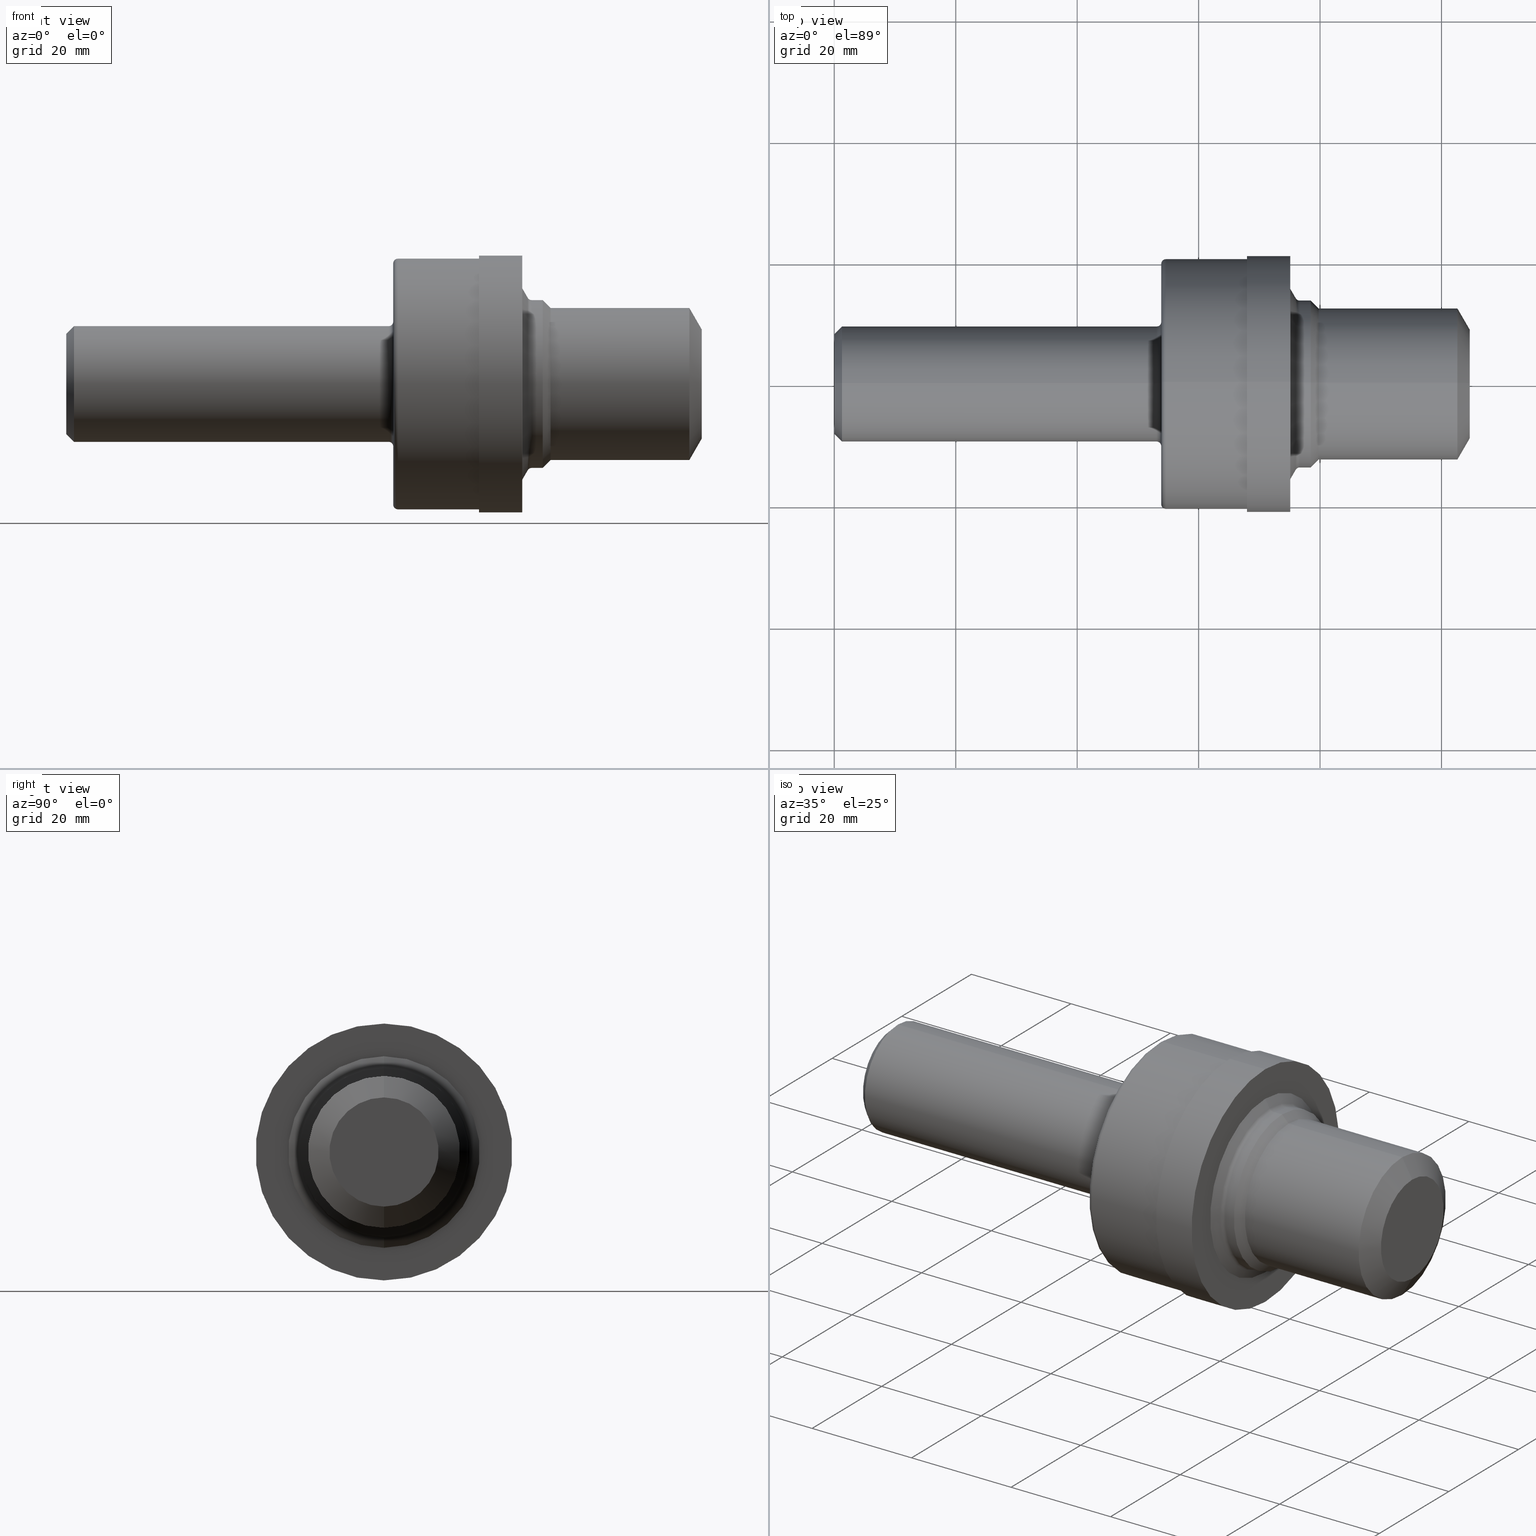
[diagram: canonical four-view strip — front | top / right | iso, engineering-drawing reading convention]
A machine part, canonical four-view strip (front | top / right | iso — engineering-drawing reading convention). The complete STEP part file that produces these views, byte-faithful:
ISO-10303-21;
HEADER;
FILE_DESCRIPTION (( 'STEP AP203' ),
    '1' );
FILE_NAME ('AS5202-12R.STEP',
    '2024-06-19T19:16:16',
    ( '' ),
    ( '' ),
    'SwSTEP 2.0',
    'SolidWorks 2022',
    '' );
FILE_SCHEMA (( 'CONFIG_CONTROL_DESIGN' ));
ENDSEC;

DATA;
#1 = PLANE ( 'NONE',  #441 ) ;
#2 = ORIENTED_EDGE ( 'NONE', *, *, #354, .F. ) ;
#3 = ORIENTED_EDGE ( 'NONE', *, *, #657, .F. ) ;
#4 = EDGE_CURVE ( 'NONE', #307, #818, #255, .T. ) ;
#5 = CIRCLE ( 'NONE', #109, 0.3539359353944886988 ) ;
#6 = LINE ( 'NONE', #716, #703 ) ;
#7 = LINE ( 'NONE', #258, #745 ) ;
#8 = DIRECTION ( 'NONE',  ( 0.000000000000000000, 0.000000000000000000, -1.000000000000000000 ) ) ;
#9 = CARTESIAN_POINT ( 'NONE',  ( 0.05000000000000000278, 0.000000000000000000, 0.000000000000000000 ) ) ;
#10 = DIRECTION ( 'NONE',  ( 1.000000000000000000, 0.000000000000000000, 0.000000000000000000 ) ) ;
#11 = DIRECTION ( 'NONE',  ( -1.000000000000000000, -0.000000000000000000, -0.000000000000000000 ) ) ;
#12 = CARTESIAN_POINT ( 'NONE',  ( 3.140599999999999170, 0.000000000000000000, 0.4924999999999999933 ) ) ;
#13 = DIRECTION ( 'NONE',  ( 0.000000000000000000, 0.000000000000000000, 1.000000000000000000 ) ) ;
#14 = DIRECTION ( 'NONE',  ( 0.000000000000000000, 0.000000000000000000, 1.000000000000000000 ) ) ;
#15 = ADVANCED_FACE ( 'NONE', ( #580 ), #667, .F. ) ;
#16 = DIRECTION ( 'NONE',  ( 0.000000000000000000, 0.000000000000000000, 1.000000000000000000 ) ) ;
#17 = AXIS2_PLACEMENT_3D ( 'NONE', #696, #756, #250 ) ;
#18 = AXIS2_PLACEMENT_3D ( 'NONE', #779, #473, #720 ) ;
#19 = CARTESIAN_POINT ( 'NONE',  ( 2.955999999999999961, 0.000000000000000000, 0.6209999999999999964 ) ) ;
#20 = PERSON_AND_ORGANIZATION ( #478, #463 ) ;
#21 = DIRECTION ( 'NONE',  ( 0.000000000000000000, 0.000000000000000000, 1.000000000000000000 ) ) ;
#22 = FACE_OUTER_BOUND ( 'NONE', #383, .T. ) ;
#23 = CARTESIAN_POINT ( 'NONE',  ( 2.120000000000000107, 4.957982566348060745E-17, -0.4048500000000000432 ) ) ;
#24 = CARTESIAN_POINT ( 'NONE',  ( 3.017141393507181135, 7.018450805913481343E-17, -0.5731000000000000538 ) ) ;
#25 = CYLINDRICAL_SURFACE ( 'NONE', #456, 0.3748500000000000165 ) ;
#26 = FACE_OUTER_BOUND ( 'NONE', #762, .T. ) ;
#27 = LOCAL_TIME ( 12, 16, 16.00000000000000000, #486 ) ;
#28 = CARTESIAN_POINT ( 'NONE',  ( 0.05000000000000000278, 0.000000000000000000, 0.3748500000000000165 ) ) ;
#29 = APPROVAL_DATE_TIME ( #236, #722 ) ;
#30 = FACE_OUTER_BOUND ( 'NONE', #666, .T. ) ;
#31 = CIRCLE ( 'NONE', #364, 0.3248500000000002497 ) ;
#32 = ORIENTED_EDGE ( 'NONE', *, *, #432, .T. ) ;
#33 = AXIS2_PLACEMENT_3D ( 'NONE', #623, #744, #685 ) ;
#34 = DIRECTION ( 'NONE',  ( -1.000000000000000000, -0.000000000000000000, -0.000000000000000000 ) ) ;
#35 = EDGE_CURVE ( 'NONE', #169, #742, #79, .T. ) ;
#36 = ORIENTED_EDGE ( 'NONE', *, *, #107, .F. ) ;
#37 = ORIENTED_EDGE ( 'NONE', *, *, #101, .T. ) ;
#38 = CIRCLE ( 'NONE', #778, 0.3748500000000000165 ) ;
#39 = FACE_OUTER_BOUND ( 'NONE', #821, .T. ) ;
#40 = ORIENTED_EDGE ( 'NONE', *, *, #359, .F. ) ;
#41 = ORIENTED_EDGE ( 'NONE', *, *, #116, .F. ) ;
#42 = ADVANCED_FACE ( 'NONE', ( #536 ), #497, .T. ) ;
#43 = PERSON_AND_ORGANIZATION_ROLE ( 'creator' ) ;
#44 = DIRECTION ( 'NONE',  ( -1.000000000000000000, -0.000000000000000000, -0.000000000000000000 ) ) ;
#45 = EDGE_CURVE ( 'NONE', #503, #673, #7, .T. ) ;
#46 = ORIENTED_EDGE ( 'NONE', *, *, #777, .F. ) ;
#47 = CONICAL_SURFACE ( 'NONE', #150, 0.3539359353944886988, 1.047197551196600074 ) ;
#48 = ORIENTED_EDGE ( 'NONE', *, *, #4, .T. ) ;
#49 = AXIS2_PLACEMENT_3D ( 'NONE', #559, #812, #239 ) ;
#50 = DIRECTION ( 'NONE',  ( -1.000000000000000000, 0.000000000000000000, -0.000000000000000000 ) ) ;
#51 = CONICAL_SURFACE ( 'NONE', #509, 0.4924999999999999933, 0.7853981633974529419 ) ;
#52 = ORIENTED_EDGE ( 'NONE', *, *, #507, .T. ) ;
#53 = CC_DESIGN_PERSON_AND_ORGANIZATION_ASSIGNMENT ( #232, #415, ( #450 ) ) ;
#54 = ADVANCED_FACE ( 'NONE', ( #26 ), #47, .T. ) ;
#55 = ORIENTED_EDGE ( 'NONE', *, *, #116, .T. ) ;
#56 = FACE_OUTER_BOUND ( 'NONE', #500, .T. ) ;
#57 = EDGE_LOOP ( 'NONE', ( #622, #493, #240, #800 ) ) ;
#58 = AXIS2_PLACEMENT_3D ( 'NONE', #447, #502, #246 ) ;
#59 = CYLINDRICAL_SURFACE ( 'NONE', #17, 0.4924999999999999933 ) ;
#60 = ORIENTED_EDGE ( 'NONE', *, *, #100, .F. ) ;
#61 = CIRCLE ( 'NONE', #524, 0.8125000000000000000 ) ;
#62 = CARTESIAN_POINT ( 'NONE',  ( 0.000000000000000000, 4.284426826817016740E-17, 0.3248500000000002497 ) ) ;
#63 = ORIENTED_EDGE ( 'NONE', *, *, #715, .F. ) ;
#64 = CC_DESIGN_PERSON_AND_ORGANIZATION_ASSIGNMENT ( #20, #43, ( #123 ) ) ;
#65 = FACE_OUTER_BOUND ( 'NONE', #99, .T. ) ;
#66 = EDGE_CURVE ( 'NONE', #95, #503, #397, .T. ) ;
#67 = EDGE_LOOP ( 'NONE', ( #287, #172 ) ) ;
#68 = FACE_OUTER_BOUND ( 'NONE', #479, .T. ) ;
#69 = CARTESIAN_POINT ( 'NONE',  ( 2.120000000000000107, 0.000000000000000000, 0.000000000000000000 ) ) ;
#70 = CIRCLE ( 'NONE', #401, 0.02999999999999995379 ) ;
#71 = AXIS2_PLACEMENT_3D ( 'NONE', #545, #225, #612 ) ;
#72 = DIRECTION ( 'NONE',  ( -1.000000000000000000, -0.000000000000000000, -0.000000000000000000 ) ) ;
#73 = DIRECTION ( 'NONE',  ( -1.000000000000000000, -0.000000000000000000, -0.000000000000000000 ) ) ;
#74 = DIRECTION ( 'NONE',  ( -1.000000000000000000, -0.000000000000000000, -0.000000000000000000 ) ) ;
#75 = CARTESIAN_POINT ( 'NONE',  ( 2.676000000000000600, 0.000000000000000000, 0.000000000000000000 ) ) ;
#76 = FACE_OUTER_BOUND ( 'NONE', #420, .T. ) ;
#77 =( NAMED_UNIT ( * ) SI_UNIT ( $, .STERADIAN. ) SOLID_ANGLE_UNIT ( ) );
#78 = LINE ( 'NONE', #648, #152 ) ;
#79 = LINE ( 'NONE', #158, #85 ) ;
#80 = DIRECTION ( 'NONE',  ( -1.000000000000000000, -0.000000000000000000, -0.000000000000000000 ) ) ;
#81 = DIRECTION ( 'NONE',  ( -1.000000000000000000, -0.000000000000000000, -0.000000000000000000 ) ) ;
#82 = FACE_OUTER_BOUND ( 'NONE', #428, .T. ) ;
#83 = DIRECTION ( 'NONE',  ( -1.000000000000000000, -0.000000000000000000, -0.000000000000000000 ) ) ;
#84 = EDGE_CURVE ( 'NONE', #155, #307, #429, .T. ) ;
#85 = VECTOR ( 'NONE', #475, 39.37007874015748143 ) ;
#86 = CIRCLE ( 'NONE', #606, 0.3748500000000000165 ) ;
#87 = CIRCLE ( 'NONE', #190, 0.02899999999999994943 ) ;
#88 = DIRECTION ( 'NONE',  ( -1.000000000000000000, -0.000000000000000000, -0.000000000000000000 ) ) ;
#89 = CARTESIAN_POINT ( 'NONE',  ( 0.000000000000000000, 6.031385485800715365E-17, -0.4924999999999999933 ) ) ;
#90 = PLANE ( 'NONE',  #167 ) ;
#91 = DIRECTION ( 'NONE',  ( 0.000000000000000000, 0.000000000000000000, 1.000000000000000000 ) ) ;
#92 = DIRECTION ( 'NONE',  ( 0.000000000000000000, 0.000000000000000000, 1.000000000000000000 ) ) ;
#93 = CALENDAR_DATE ( 2024, 19, 6 ) ;
#94 = DIRECTION ( 'NONE',  ( 0.000000000000000000, 0.000000000000000000, 1.000000000000000000 ) ) ;
#95 = VERTEX_POINT ( 'NONE', #644 ) ;
#96 = AXIS2_PLACEMENT_3D ( 'NONE', #775, #215, #392 ) ;
#97 = AXIS2_PLACEMENT_3D ( 'NONE', #146, #388, #400 ) ;
#98 = CIRCLE ( 'NONE', #499, 0.5586000000000000965 ) ;
#99 = EDGE_LOOP ( 'NONE', ( #63, #676, #185, #511 ) ) ;
#100 = EDGE_CURVE ( 'NONE', #297, #731, #565, .T. ) ;
#101 = EDGE_CURVE ( 'NONE', #289, #126, #228, .T. ) ;
#102 = CARTESIAN_POINT ( 'NONE',  ( 0.000000000000000000, 0.000000000000000000, 0.000000000000000000 ) ) ;
#103 = ORIENTED_EDGE ( 'NONE', *, *, #597, .F. ) ;
#104 = ORIENTED_EDGE ( 'NONE', *, *, #537, .F. ) ;
#105 = DIRECTION ( 'NONE',  ( 0.000000000000000000, 0.000000000000000000, 1.000000000000000000 ) ) ;
#106 = VERTEX_POINT ( 'NONE', #518 ) ;
#107 = EDGE_CURVE ( 'NONE', #95, #560, #769, .T. ) ;
#108 = AXIS2_PLACEMENT_3D ( 'NONE', #782, #208, #471 ) ;
#109 = AXIS2_PLACEMENT_3D ( 'NONE', #803, #491, #380 ) ;
#110 = ADVANCED_FACE ( 'NONE', ( #709 ), #252, .T. ) ;
#111 = EDGE_LOOP ( 'NONE', ( #554, #736, #806, #697 ) ) ;
#112 = FACE_OUTER_BOUND ( 'NONE', #177, .T. ) ;
#113 = CARTESIAN_POINT ( 'NONE',  ( 2.676000000000000600, 9.950255243072245579E-17, -0.8125000000000000000 ) ) ;
#114 = ORIENTED_EDGE ( 'NONE', *, *, #705, .F. ) ;
#115 = DIRECTION ( 'NONE',  ( -1.000000000000000000, -0.000000000000000000, -0.000000000000000000 ) ) ;
#116 = EDGE_CURVE ( 'NONE', #355, #689, #639, .T. ) ;
#117 = ORIENTED_EDGE ( 'NONE', *, *, #141, .T. ) ;
#118 = LINE ( 'NONE', #313, #521 ) ;
#119 = CIRCLE ( 'NONE', #385, 0.8325000000000000178 ) ;
#120 = CARTESIAN_POINT ( 'NONE',  ( 4.040000000000000036, 0.000000000000000000, 0.000000000000000000 ) ) ;
#121 = VECTOR ( 'NONE', #274, 39.37007874015748143 ) ;
#122 = EDGE_LOOP ( 'NONE', ( #550, #424, #60, #533 ) ) ;
#123 = PRODUCT_DEFINITION ( 'UNKNOWN', '', #645, #608 ) ;
#124 = EDGE_CURVE ( 'NONE', #221, #355, #659, .T. ) ;
#125 = DIRECTION ( 'NONE',  ( 0.000000000000000000, 0.000000000000000000, 1.000000000000000000 ) ) ;
#126 = VERTEX_POINT ( 'NONE', #599 ) ;
#127 = DIRECTION ( 'NONE',  ( -1.000000000000000000, -0.000000000000000000, -0.000000000000000000 ) ) ;
#128 = ORIENTED_EDGE ( 'NONE', *, *, #501, .F. ) ;
#129 = EDGE_CURVE ( 'NONE', #409, #444, #487, .T. ) ;
#130 = FACE_OUTER_BOUND ( 'NONE', #678, .T. ) ;
#131 = DIRECTION ( 'NONE',  ( -1.000000000000000000, -0.000000000000000000, -0.000000000000000000 ) ) ;
#132 = DIRECTION ( 'NONE',  ( 0.000000000000000000, 0.000000000000000000, 1.000000000000000000 ) ) ;
#133 = DIRECTION ( 'NONE',  ( 0.000000000000000000, 0.000000000000000000, 1.000000000000000000 ) ) ;
#134 = AXIS2_PLACEMENT_3D ( 'NONE', #367, #784, #530 ) ;
#135 = AXIS2_PLACEMENT_3D ( 'NONE', #69, #594, #323 ) ;
#136 = AXIS2_PLACEMENT_3D ( 'NONE', #102, #294, #176 ) ;
#137 = CARTESIAN_POINT ( 'NONE',  ( 2.676000000000000600, 1.019518460290171568E-16, -0.8325000000000000178 ) ) ;
#138 = PERSON_AND_ORGANIZATION ( #478, #463 ) ;
#139 = PLANE ( 'NONE',  #254 ) ;
#140 = DIRECTION ( 'NONE',  ( 0.000000000000000000, 0.000000000000000000, 1.000000000000000000 ) ) ;
#141 = EDGE_CURVE ( 'NONE', #673, #560, #589, .T. ) ;
#142 = CARTESIAN_POINT ( 'NONE',  ( 0.000000000000000000, 0.000000000000000000, 0.5441000000000000281 ) ) ;
#143 = EDGE_CURVE ( 'NONE', #620, #349, #308, .T. ) ;
#144 = APPROVAL_DATE_TIME ( #592, #655 ) ;
#145 = DIRECTION ( 'NONE',  ( 0.000000000000000000, 0.000000000000000000, 1.000000000000000000 ) ) ;
#146 = CARTESIAN_POINT ( 'NONE',  ( 2.676000000000000600, 0.000000000000000000, 0.000000000000000000 ) ) ;
#147 = FACE_OUTER_BOUND ( 'NONE', #370, .T. ) ;
#148 = DIRECTION ( 'NONE',  ( -1.000000000000000000, -0.000000000000000000, -0.000000000000000000 ) ) ;
#149 = DIRECTION ( 'NONE',  ( -1.000000000000000000, -0.000000000000000000, -0.000000000000000000 ) ) ;
#150 = AXIS2_PLACEMENT_3D ( 'NONE', #271, #149, #724 ) ;
#151 = AXIS2_PLACEMENT_3D ( 'NONE', #75, #584, #140 ) ;
#152 = VECTOR ( 'NONE', #587, 39.37007874015748143 ) ;
#153 = ADVANCED_FACE ( 'NONE', ( #22 ), #531, .F. ) ;
#154 = DIRECTION ( 'NONE',  ( 0.000000000000000000, 0.000000000000000000, 1.000000000000000000 ) ) ;
#155 = VERTEX_POINT ( 'NONE', #785 ) ;
#156 = CARTESIAN_POINT ( 'NONE',  ( 0.000000000000000000, 0.000000000000000000, 0.000000000000000000 ) ) ;
#157 = DIRECTION ( 'NONE',  ( -1.000000000000000000, -0.000000000000000000, -0.000000000000000000 ) ) ;
#158 = CARTESIAN_POINT ( 'NONE',  ( 0.000000000000000000, 0.000000000000000000, 0.3748500000000000165 ) ) ;
#159 = DATE_AND_TIME ( #298, #275 ) ;
#160 = DIRECTION ( 'NONE',  ( 0.000000000000000000, 0.000000000000000000, 1.000000000000000000 ) ) ;
#161 = ORIENTED_EDGE ( 'NONE', *, *, #45, .F. ) ;
#162 = ORIENTED_EDGE ( 'NONE', *, *, #422, .F. ) ;
#163 = PERSON_AND_ORGANIZATION ( #478, #463 ) ;
#164 = FACE_BOUND ( 'NONE', #352, .T. ) ;
#165 = ORIENTED_EDGE ( 'NONE', *, *, #489, .T. ) ;
#166 = CIRCLE ( 'NONE', #178, 0.03000000000000008910 ) ;
#167 = AXIS2_PLACEMENT_3D ( 'NONE', #706, #698, #327 ) ;
#168 = ORIENTED_EDGE ( 'NONE', *, *, #316, .F. ) ;
#169 = VERTEX_POINT ( 'NONE', #555 ) ;
#170 = LOCAL_TIME ( 12, 16, 16.00000000000000000, #711 ) ;
#171 = EDGE_CURVE ( 'NONE', #748, #355, #200, .T. ) ;
#172 = ORIENTED_EDGE ( 'NONE', *, *, #143, .F. ) ;
#173 = APPROVAL_PERSON_ORGANIZATION ( #163, #305, #611 ) ;
#174 = ADVANCED_FACE ( 'NONE', ( #495 ), #669, .T. ) ;
#175 = DATE_AND_TIME ( #680, #273 ) ;
#176 = DIRECTION ( 'NONE',  ( 0.000000000000000000, 0.000000000000000000, 1.000000000000000000 ) ) ;
#177 = EDGE_LOOP ( 'NONE', ( #312, #405, #796, #182 ) ) ;
#178 = AXIS2_PLACEMENT_3D ( 'NONE', #723, #386, #781 ) ;
#179 = AXIS2_PLACEMENT_3D ( 'NONE', #516, #197, #154 ) ;
#180 = EDGE_LOOP ( 'NONE', ( #686, #48, #363, #628 ) ) ;
#181 = CARTESIAN_POINT ( 'NONE',  ( 4.040000000000000036, 6.031385485800715365E-17, -0.4924999999999999933 ) ) ;
#182 = ORIENTED_EDGE ( 'NONE', *, *, #446, .T. ) ;
#183 = DIRECTION ( 'NONE',  ( 0.000000000000000000, 0.000000000000000000, 1.000000000000000000 ) ) ;
#184 = DIRECTION ( 'NONE',  ( 0.000000000000000000, 0.000000000000000000, 1.000000000000000000 ) ) ;
#185 = ORIENTED_EDGE ( 'NONE', *, *, #572, .T. ) ;
#186 = EDGE_CURVE ( 'NONE', #573, #484, #348, .T. ) ;
#187 = DIRECTION ( 'NONE',  ( 0.7071067811865489050, 0.000000000000000000, -0.7071067811865461294 ) ) ;
#188 = CONICAL_SURFACE ( 'NONE', #498, 0.3539359353944886988, 1.047197551196600074 ) ;
#189 = FACE_OUTER_BOUND ( 'NONE', #492, .T. ) ;
#190 = AXIS2_PLACEMENT_3D ( 'NONE', #331, #211, #268 ) ;
#191 = EDGE_LOOP ( 'NONE', ( #609, #52, #488, #358 ) ) ;
#192 = CARTESIAN_POINT ( 'NONE',  ( 0.000000000000000000, 0.000000000000000000, 0.000000000000000000 ) ) ;
#193 = ORIENTED_EDGE ( 'NONE', *, *, #100, .T. ) ;
#194 = DIRECTION ( 'NONE',  ( 0.000000000000000000, 0.000000000000000000, 1.000000000000000000 ) ) ;
#195 = DIRECTION ( 'NONE',  ( 0.000000000000000000, 0.000000000000000000, 1.000000000000000000 ) ) ;
#196 = DIRECTION ( 'NONE',  ( -0.4999999999999991118, 0.000000000000000000, 0.8660254037844391517 ) ) ;
#197 = DIRECTION ( 'NONE',  ( -1.000000000000000000, -0.000000000000000000, -0.000000000000000000 ) ) ;
#198 = CARTESIAN_POINT ( 'NONE',  ( 2.676000000000000600, 0.000000000000000000, 0.000000000000000000 ) ) ;
#199 = CARTESIAN_POINT ( 'NONE',  ( 2.992026656797432516, 6.840877020037116138E-17, -0.5586000000000000965 ) ) ;
#200 = CIRCLE ( 'NONE', #49, 0.4924999999999999933 ) ;
#201 = CIRCLE ( 'NONE', #241, 0.5441000000000000281 ) ;
#202 = FACE_OUTER_BOUND ( 'NONE', #122, .T. ) ;
#203 = DIRECTION ( 'NONE',  ( 1.000000000000000000, 0.000000000000000000, 0.000000000000000000 ) ) ;
#204 = DIRECTION ( 'NONE',  ( 0.000000000000000000, 0.000000000000000000, -1.000000000000000000 ) ) ;
#205 = CIRCLE ( 'NONE', #290, 0.3748500000000000165 ) ;
#206 = LINE ( 'NONE', #586, #387 ) ;
#207 = CARTESIAN_POINT ( 'NONE',  ( 0.000000000000000000, 0.000000000000000000, 0.000000000000000000 ) ) ;
#208 = DIRECTION ( 'NONE',  ( -1.000000000000000000, 0.000000000000000000, -0.000000000000000000 ) ) ;
#209 = CC_DESIGN_DATE_AND_TIME_ASSIGNMENT ( #175, #540, ( #123 ) ) ;
#210 = ADVANCED_FACE ( 'NONE', ( #56 ), #750, .T. ) ;
#211 = DIRECTION ( 'NONE',  ( 0.000000000000000000, -1.000000000000000000, 0.000000000000000000 ) ) ;
#212 = ORIENTED_EDGE ( 'NONE', *, *, #4, .F. ) ;
#213 = DIRECTION ( 'NONE',  ( -1.000000000000000000, -0.000000000000000000, -0.000000000000000000 ) ) ;
#214 = CARTESIAN_POINT ( 'NONE',  ( 3.140599999999999170, 6.031385485800715365E-17, -0.4924999999999999933 ) ) ;
#215 = DIRECTION ( 'NONE',  ( -1.000000000000000000, -0.000000000000000000, -0.000000000000000000 ) ) ;
#216 = VECTOR ( 'NONE', #567, 39.37007874015748143 ) ;
#217 = AXIS2_PLACEMENT_3D ( 'NONE', #233, #50, #299 ) ;
#218 = CYLINDRICAL_SURFACE ( 'NONE', #310, 0.8325000000000000178 ) ;
#219 = VERTEX_POINT ( 'NONE', #378 ) ;
#220 = DIRECTION ( 'NONE',  ( -1.000000000000000000, -0.000000000000000000, -0.000000000000000000 ) ) ;
#221 = VERTEX_POINT ( 'NONE', #181 ) ;
#222 = EDGE_LOOP ( 'NONE', ( #568, #727, #617, #552 ) ) ;
#223 = ORIENTED_EDGE ( 'NONE', *, *, #777, .T. ) ;
#224 = APPROVAL_STATUS ( 'not_yet_approved' ) ;
#225 = DIRECTION ( 'NONE',  ( -1.000000000000000000, -0.000000000000000000, -0.000000000000000000 ) ) ;
#226 = EDGE_CURVE ( 'NONE', #409, #562, #624, .T. ) ;
#227 = EDGE_LOOP ( 'NONE', ( #751, #614, #417, #448 ) ) ;
#228 = CIRCLE ( 'NONE', #577, 0.3248500000000002497 ) ;
#229 = ADVANCED_FACE ( 'NONE', ( #510 ), #761, .T. ) ;
#230 = TOROIDAL_SURFACE ( 'NONE', #607, 0.7825000000000000844, 0.02999999999999995379 ) ;
#231 = ORIENTED_EDGE ( 'NONE', *, *, #501, .T. ) ;
#232 = PERSON_AND_ORGANIZATION ( #478, #463 ) ;
#233 = CARTESIAN_POINT ( 'NONE',  ( 2.955999999999999961, 0.8325000000000000178, 0.000000000000000000 ) ) ;
#234 = ORIENTED_EDGE ( 'NONE', *, *, #649, .T. ) ;
#235 = ORIENTED_EDGE ( 'NONE', *, *, #171, .T. ) ;
#236 = DATE_AND_TIME ( #93, #27 ) ;
#237 = ORIENTED_EDGE ( 'NONE', *, *, #414, .T. ) ;
#238 = ADVANCED_FACE ( 'NONE', ( #561 ), #1, .F. ) ;
#239 = DIRECTION ( 'NONE',  ( 0.000000000000000000, 0.000000000000000000, 1.000000000000000000 ) ) ;
#240 = ORIENTED_EDGE ( 'NONE', *, *, #35, .T. ) ;
#241 = AXIS2_PLACEMENT_3D ( 'NONE', #737, #44, #303 ) ;
#242 = CIRCLE ( 'NONE', #683, 0.4924999999999999933 ) ;
#243 = CC_DESIGN_DATE_AND_TIME_ASSIGNMENT ( #360, #410, ( #450 ) ) ;
#244 = CARTESIAN_POINT ( 'NONE',  ( 0.000000000000000000, 0.000000000000000000, 0.000000000000000000 ) ) ;
#245 = ORIENTED_EDGE ( 'NONE', *, *, #445, .T. ) ;
#246 = DIRECTION ( 'NONE',  ( 0.000000000000000000, 0.000000000000000000, 1.000000000000000000 ) ) ;
#247 = ORIENTED_EDGE ( 'NONE', *, *, #674, .T. ) ;
#248 = ADVANCED_FACE ( 'NONE', ( #189 ), #59, .T. ) ;
#249 = CARTESIAN_POINT ( 'NONE',  ( 0.000000000000000000, 1.019518460290171568E-16, -0.8325000000000000178 ) ) ;
#250 = DIRECTION ( 'NONE',  ( 0.000000000000000000, 0.000000000000000000, 1.000000000000000000 ) ) ;
#251 = ORIENTED_EDGE ( 'NONE', *, *, #186, .T. ) ;
#252 = CONICAL_SURFACE ( 'NONE', #296, 0.5586000000000000965, 1.047197551196598742 ) ;
#253 = DIRECTION ( 'NONE',  ( 0.000000000000000000, 0.000000000000000000, 1.000000000000000000 ) ) ;
#254 = AXIS2_PLACEMENT_3D ( 'NONE', #391, #10, #333 ) ;
#255 = LINE ( 'NONE', #326, #814 ) ;
#256 = MECHANICAL_CONTEXT ( 'NONE', #652, 'mechanical' ) ;
#257 = CARTESIAN_POINT ( 'NONE',  ( 0.000000000000000000, 0.000000000000000000, 0.000000000000000000 ) ) ;
#258 = CARTESIAN_POINT ( 'NONE',  ( 2.992026656797432516, 0.000000000000000000, 0.5586000000000000965 ) ) ;
#259 = CYLINDRICAL_SURFACE ( 'NONE', #179, 0.8325000000000000178 ) ;
#260 = APPLICATION_PROTOCOL_DEFINITION ( 'international standard', 'config_control_design', 1994, #652 ) ;
#261 = CARTESIAN_POINT ( 'NONE',  ( 2.089999999999999858, 0.000000000000000000, 0.000000000000000000 ) ) ;
#262 = DIRECTION ( 'NONE',  ( 0.000000000000000000, 0.000000000000000000, 1.000000000000000000 ) ) ;
#263 = EDGE_CURVE ( 'NONE', #735, #368, #438, .T. ) ;
#264 = LENGTH_MEASURE_WITH_UNIT ( LENGTH_MEASURE( 0.02539999999999999897 ), #398 );
#265 = CARTESIAN_POINT ( 'NONE',  ( 4.120000000000000107, 0.000000000000000000, 0.3539359353944886988 ) ) ;
#266 = DIRECTION ( 'NONE',  ( -0.7071067811865442421, 8.659560562354973534E-17, -0.7071067811865507924 ) ) ;
#267 = AXIS2_PLACEMENT_3D ( 'NONE', #306, #694, #253 ) ;
#268 = DIRECTION ( 'NONE',  ( 0.000000000000000000, 0.000000000000000000, -1.000000000000000000 ) ) ;
#269 = CC_DESIGN_PERSON_AND_ORGANIZATION_ASSIGNMENT ( #773, #457, ( #687 ) ) ;
#270 = CARTESIAN_POINT ( 'NONE',  ( 2.120000000000000107, 0.000000000000000000, 0.4048500000000000432 ) ) ;
#271 = CARTESIAN_POINT ( 'NONE',  ( 4.120000000000000107, 0.000000000000000000, 0.000000000000000000 ) ) ;
#272 = ADVANCED_FACE ( 'NONE', ( #820 ), #788, .T. ) ;
#273 = LOCAL_TIME ( 12, 16, 16.00000000000000000, #618 ) ;
#274 = DIRECTION ( 'NONE',  ( -0.7071067811865442421, 0.000000000000000000, 0.7071067811865507924 ) ) ;
#275 = LOCAL_TIME ( 12, 16, 16.00000000000000000, #425 ) ;
#276 =( CONVERSION_BASED_UNIT ( 'INCH', #264 ) LENGTH_UNIT ( ) NAMED_UNIT ( #663 ) );
#277 = DIRECTION ( 'NONE',  ( 0.000000000000000000, 0.000000000000000000, 1.000000000000000000 ) ) ;
#278 = DIRECTION ( 'NONE',  ( -1.000000000000000000, -0.000000000000000000, -0.000000000000000000 ) ) ;
#279 = PRODUCT_RELATED_PRODUCT_CATEGORY ( 'detail', '', ( #687 ) ) ;
#280 = DIRECTION ( 'NONE',  ( 0.000000000000000000, 0.000000000000000000, 1.000000000000000000 ) ) ;
#281 = DIRECTION ( 'NONE',  ( 0.000000000000000000, 0.000000000000000000, 1.000000000000000000 ) ) ;
#282 = EDGE_CURVE ( 'NONE', #221, #562, #430, .T. ) ;
#283 = ORIENTED_EDGE ( 'NONE', *, *, #776, .F. ) ;
#284 = AXIS2_PLACEMENT_3D ( 'NONE', #505, #638, #125 ) ;
#285 = AXIS2_PLACEMENT_3D ( 'NONE', #461, #467, #280 ) ;
#286 = EDGE_CURVE ( 'NONE', #219, #484, #70, .T. ) ;
#287 = ORIENTED_EDGE ( 'NONE', *, *, #446, .F. ) ;
#288 = PERSON_AND_ORGANIZATION ( #478, #463 ) ;
#289 = VERTEX_POINT ( 'NONE', #62 ) ;
#290 = AXIS2_PLACEMENT_3D ( 'NONE', #522, #213, #780 ) ;
#291 = PERSON_AND_ORGANIZATION ( #478, #463 ) ;
#292 = EDGE_LOOP ( 'NONE', ( #235, #55, #319, #3 ) ) ;
#293 = ORIENTED_EDGE ( 'NONE', *, *, #316, .T. ) ;
#294 = DIRECTION ( 'NONE',  ( -1.000000000000000000, -0.000000000000000000, -0.000000000000000000 ) ) ;
#295 = ORIENTED_EDGE ( 'NONE', *, *, #124, .F. ) ;
#296 = AXIS2_PLACEMENT_3D ( 'NONE', #330, #588, #16 ) ;
#297 = VERTEX_POINT ( 'NONE', #314 ) ;
#298 = CALENDAR_DATE ( 2024, 19, 6 ) ;
#299 = DIRECTION ( 'NONE',  ( -0.000000000000000000, 0.000000000000000000, 1.000000000000000000 ) ) ;
#300 = ADVANCED_FACE ( 'NONE', ( #452 ), #542, .F. ) ;
#301 = ORIENTED_EDGE ( 'NONE', *, *, #507, .F. ) ;
#302 = ADVANCED_FACE ( 'NONE', ( #65 ), #317, .T. ) ;
#303 = DIRECTION ( 'NONE',  ( 0.000000000000000000, 0.000000000000000000, 1.000000000000000000 ) ) ;
#304 = ORIENTED_EDGE ( 'NONE', *, *, #171, .F. ) ;
#305 = APPROVAL ( #802, 'UNSPECIFIED' ) ;
#306 = CARTESIAN_POINT ( 'NONE',  ( 2.120000000000000107, 0.000000000000000000, 0.000000000000000000 ) ) ;
#307 = VERTEX_POINT ( 'NONE', #113 ) ;
#308 = CIRCLE ( 'NONE', #135, 0.4048500000000000432 ) ;
#309 = CIRCLE ( 'NONE', #770, 0.5441000000000000281 ) ;
#310 = AXIS2_PLACEMENT_3D ( 'NONE', #789, #538, #601 ) ;
#311 = CARTESIAN_POINT ( 'NONE',  ( 0.000000000000000000, 4.590588526603853748E-17, -0.3748500000000000165 ) ) ;
#312 = ORIENTED_EDGE ( 'NONE', *, *, #344, .F. ) ;
#313 = CARTESIAN_POINT ( 'NONE',  ( 0.000000000000000000, 0.000000000000000000, 0.8125000000000000000 ) ) ;
#314 = CARTESIAN_POINT ( 'NONE',  ( 2.676000000000000600, 0.000000000000000000, 0.8325000000000000178 ) ) ;
#315 = EDGE_LOOP ( 'NONE', ( #46, #490, #247, #245 ) ) ;
#316 = EDGE_CURVE ( 'NONE', #793, #809, #519, .T. ) ;
#317 = CYLINDRICAL_SURFACE ( 'NONE', #719, 0.5441000000000000281 ) ;
#318 = EDGE_CURVE ( 'NONE', #126, #289, #31, .T. ) ;
#319 = ORIENTED_EDGE ( 'NONE', *, *, #362, .F. ) ;
#320 = AXIS2_PLACEMENT_3D ( 'NONE', #746, #752, #816 ) ;
#321 = DIRECTION ( 'NONE',  ( 0.000000000000000000, 0.000000000000000000, -1.000000000000000000 ) ) ;
#322 = AXIS2_PLACEMENT_3D ( 'NONE', #593, #523, #470 ) ;
#323 = DIRECTION ( 'NONE',  ( 0.000000000000000000, 0.000000000000000000, 1.000000000000000000 ) ) ;
#324 = CARTESIAN_POINT ( 'NONE',  ( 2.089999999999999858, 0.000000000000000000, 0.4048500000000000432 ) ) ;
#325 = DIRECTION ( 'NONE',  ( -1.000000000000000000, -0.000000000000000000, -0.000000000000000000 ) ) ;
#326 = CARTESIAN_POINT ( 'NONE',  ( 0.000000000000000000, 9.950255243072245579E-17, -0.8125000000000000000 ) ) ;
#327 = DIRECTION ( 'NONE',  ( 0.000000000000000000, 0.000000000000000000, -1.000000000000000000 ) ) ;
#328 = DIRECTION ( 'NONE',  ( -1.000000000000000000, -0.000000000000000000, -0.000000000000000000 ) ) ;
#329 = FACE_BOUND ( 'NONE', #485, .T. ) ;
#330 = CARTESIAN_POINT ( 'NONE',  ( 2.992026656797432516, 0.000000000000000000, 0.000000000000000000 ) ) ;
#331 = CARTESIAN_POINT ( 'NONE',  ( 3.017141393507181135, 0.000000000000000000, 0.5731000000000000538 ) ) ;
#332 = ADVANCED_FACE ( 'NONE', ( #30 ), #792, .T. ) ;
#333 = DIRECTION ( 'NONE',  ( 0.000000000000000000, 0.000000000000000000, -1.000000000000000000 ) ) ;
#334 = DIRECTION ( 'NONE',  ( 0.000000000000000000, 0.000000000000000000, 1.000000000000000000 ) ) ;
#335 = AXIS2_PLACEMENT_3D ( 'NONE', #774, #643, #14 ) ;
#336 = TOROIDAL_SURFACE ( 'NONE', #477, 0.4048500000000000432, 0.03000000000000012379 ) ;
#337 = CARTESIAN_POINT ( 'NONE',  ( 3.088999999999999968, 0.000000000000000000, 0.000000000000000000 ) ) ;
#338 = CARTESIAN_POINT ( 'NONE',  ( 2.149999999999999911, 0.000000000000000000, 0.000000000000000000 ) ) ;
#339 = CARTESIAN_POINT ( 'NONE',  ( 0.05000000000000000278, 4.590588526603853748E-17, -0.3748500000000000165 ) ) ;
#340 = CARTESIAN_POINT ( 'NONE',  ( 0.000000000000000000, 0.000000000000000000, 0.000000000000000000 ) ) ;
#341 = CARTESIAN_POINT ( 'NONE',  ( 3.140599999999999170, 0.000000000000000000, 0.000000000000000000 ) ) ;
#342 = ORIENTED_EDGE ( 'NONE', *, *, #570, .F. ) ;
#343 = CARTESIAN_POINT ( 'NONE',  ( 3.017141393507181135, 0.000000000000000000, 0.5441000000000000281 ) ) ;
#344 = EDGE_CURVE ( 'NONE', #735, #620, #166, .T. ) ;
#345 = CC_DESIGN_APPROVAL ( #305, ( #645 ) ) ;
#346 = PERSON_AND_ORGANIZATION_ROLE ( 'creator' ) ;
#347 = CARTESIAN_POINT ( 'NONE',  ( 2.120000000000000107, 0.000000000000000000, 0.000000000000000000 ) ) ;
#348 = CIRCLE ( 'NONE', #267, 0.7825000000000000844 ) ;
#349 = VERTEX_POINT ( 'NONE', #270 ) ;
#350 = CIRCLE ( 'NONE', #322, 0.02999999999999995379 ) ;
#351 = CIRCLE ( 'NONE', #819, 0.02899999999999994943 ) ;
#352 = EDGE_LOOP ( 'NONE', ( #117, #231 ) ) ;
#353 = DIRECTION ( 'NONE',  ( -1.000000000000000000, -0.000000000000000000, -0.000000000000000000 ) ) ;
#354 = EDGE_CURVE ( 'NONE', #731, #297, #747, .T. ) ;
#355 = VERTEX_POINT ( 'NONE', #214 ) ;
#356 = ORIENTED_EDGE ( 'NONE', *, *, #107, .T. ) ;
#357 = ORIENTED_EDGE ( 'NONE', *, *, #631, .F. ) ;
#358 = ORIENTED_EDGE ( 'NONE', *, *, #282, .F. ) ;
#359 = EDGE_CURVE ( 'NONE', #809, #793, #119, .T. ) ;
#360 = DATE_AND_TIME ( #795, #636 ) ;
#361 = FACE_OUTER_BOUND ( 'NONE', #801, .T. ) ;
#362 = EDGE_CURVE ( 'NONE', #603, #689, #692, .T. ) ;
#363 = ORIENTED_EDGE ( 'NONE', *, *, #432, .F. ) ;
#364 = AXIS2_PLACEMENT_3D ( 'NONE', #207, #458, #145 ) ;
#365 = APPROVAL_DATE_TIME ( #159, #305 ) ;
#366 = ORIENTED_EDGE ( 'NONE', *, *, #226, .F. ) ;
#367 = CARTESIAN_POINT ( 'NONE',  ( 2.955999999999999961, 0.000000000000000000, 0.000000000000000000 ) ) ;
#368 = VERTEX_POINT ( 'NONE', #339 ) ;
#369 = DIRECTION ( 'NONE',  ( 1.000000000000000000, 0.000000000000000000, 0.000000000000000000 ) ) ;
#370 = EDGE_LOOP ( 'NONE', ( #41, #165, #506, #342 ) ) ;
#371 = AXIS2_PLACEMENT_3D ( 'NONE', #198, #220, #712 ) ;
#372 = ADVANCED_FACE ( 'NONE', ( #541 ), #188, .T. ) ;
#373 = CIRCLE ( 'NONE', #18, 0.7825000000000000844 ) ;
#374 = DIRECTION ( 'NONE',  ( -1.000000000000000000, -0.000000000000000000, -0.000000000000000000 ) ) ;
#375 = DIRECTION ( 'NONE',  ( 0.000000000000000000, 0.000000000000000000, 1.000000000000000000 ) ) ;
#376 = EDGE_CURVE ( 'NONE', #169, #735, #86, .T. ) ;
#377 = ORIENTED_EDGE ( 'NONE', *, *, #631, .T. ) ;
#378 = CARTESIAN_POINT ( 'NONE',  ( 2.149999999999999911, 0.000000000000000000, 0.8125000000000000000 ) ) ;
#379 = EDGE_LOOP ( 'NONE', ( #32, #237, #357, #625 ) ) ;
#380 = DIRECTION ( 'NONE',  ( 0.000000000000000000, 0.000000000000000000, 1.000000000000000000 ) ) ;
#381 = ADVANCED_FACE ( 'NONE', ( #329, #82 ), #139, .F. ) ;
#382 = DIRECTION ( 'NONE',  ( 0.000000000000000000, 0.000000000000000000, 1.000000000000000000 ) ) ;
#383 = EDGE_LOOP ( 'NONE', ( #539, #301 ) ) ;
#384 = CARTESIAN_POINT ( 'NONE',  ( 2.992026656797432516, 0.000000000000000000, 0.000000000000000000 ) ) ;
#385 = AXIS2_PLACEMENT_3D ( 'NONE', #708, #517, #394 ) ;
#386 = DIRECTION ( 'NONE',  ( -0.000000000000000000, 1.000000000000000000, 1.224646799147353207E-16 ) ) ;
#387 = VECTOR ( 'NONE', #534, 39.37007874015748143 ) ;
#388 = DIRECTION ( 'NONE',  ( -1.000000000000000000, -0.000000000000000000, -0.000000000000000000 ) ) ;
#389 = CARTESIAN_POINT ( 'NONE',  ( 2.089999999999999858, 4.774285546475957555E-17, -0.3748500000000000165 ) ) ;
#390 =( NAMED_UNIT ( * ) PLANE_ANGLE_UNIT ( ) SI_UNIT ( $, .RADIAN. ) );
#391 = CARTESIAN_POINT ( 'NONE',  ( 2.676000000000000600, 0.8125000000000000000, 0.000000000000000000 ) ) ;
#392 = DIRECTION ( 'NONE',  ( 0.000000000000000000, 0.000000000000000000, 1.000000000000000000 ) ) ;
#393 = LINE ( 'NONE', #651, #578 ) ;
#394 = DIRECTION ( 'NONE',  ( 0.000000000000000000, 0.000000000000000000, 1.000000000000000000 ) ) ;
#395 = DIRECTION ( 'NONE',  ( 0.000000000000000000, 0.000000000000000000, 1.000000000000000000 ) ) ;
#396 = CARTESIAN_POINT ( 'NONE',  ( 4.040000000000000036, 0.000000000000000000, 0.000000000000000000 ) ) ;
#397 = CIRCLE ( 'NONE', #787, 0.5586000000000000965 ) ;
#398 =( LENGTH_UNIT ( ) NAMED_UNIT ( * ) SI_UNIT ( $, .METRE. ) );
#399 = DIRECTION ( 'NONE',  ( 0.000000000000000000, 0.000000000000000000, 1.000000000000000000 ) ) ;
#400 = DIRECTION ( 'NONE',  ( 0.000000000000000000, 0.000000000000000000, 1.000000000000000000 ) ) ;
#401 = AXIS2_PLACEMENT_3D ( 'NONE', #633, #443, #321 ) ;
#402 = CIRCLE ( 'NONE', #721, 0.03000000000000008910 ) ;
#403 = EDGE_CURVE ( 'NONE', #503, #95, #98, .T. ) ;
#404 = DIRECTION ( 'NONE',  ( 0.000000000000000000, 0.000000000000000000, 1.000000000000000000 ) ) ;
#405 = ORIENTED_EDGE ( 'NONE', *, *, #376, .F. ) ;
#406 = EDGE_CURVE ( 'NONE', #809, #297, #78, .T. ) ;
#407 = CARTESIAN_POINT ( 'NONE',  ( 2.955999999999999961, 1.019518460290171568E-16, -0.8325000000000000178 ) ) ;
#408 = CARTESIAN_POINT ( 'NONE',  ( 2.149999999999999911, 0.000000000000000000, 0.000000000000000000 ) ) ;
#409 = VERTEX_POINT ( 'NONE', #265 ) ;
#410 = DATE_TIME_ROLE ( 'classification_date' ) ;
#411 = FACE_OUTER_BOUND ( 'NONE', #227, .T. ) ;
#412 = ORIENTED_EDGE ( 'NONE', *, *, #805, .F. ) ;
#413 = ORIENTED_EDGE ( 'NONE', *, *, #805, .T. ) ;
#414 = EDGE_CURVE ( 'NONE', #818, #573, #350, .T. ) ;
#415 = PERSON_AND_ORGANIZATION_ROLE ( 'classification_officer' ) ;
#416 = VECTOR ( 'NONE', #460, 39.37007874015748143 ) ;
#417 = ORIENTED_EDGE ( 'NONE', *, *, #286, .T. ) ;
#418 = VECTOR ( 'NONE', #581, 39.37007874015748143 ) ;
#419 = CIRCLE ( 'NONE', #459, 0.8125000000000000000 ) ;
#420 = EDGE_LOOP ( 'NONE', ( #377, #251 ) ) ;
#421 = ADVANCED_FACE ( 'NONE', ( #535 ), #25, .T. ) ;
#422 = EDGE_CURVE ( 'NONE', #735, #169, #704, .T. ) ;
#423 = ORIENTED_EDGE ( 'NONE', *, *, #318, .T. ) ;
#424 = ORIENTED_EDGE ( 'NONE', *, *, #537, .T. ) ;
#425 = COORDINATED_UNIVERSAL_TIME_OFFSET ( 8, 0, .BEHIND. ) ;
#426 = CARTESIAN_POINT ( 'NONE',  ( 2.120000000000000107, 0.000000000000000000, 0.7825000000000000844 ) ) ;
#427 = CC_DESIGN_PERSON_AND_ORGANIZATION_ASSIGNMENT ( #548, #791, ( #645 ) ) ;
#428 = EDGE_LOOP ( 'NONE', ( #193, #675 ) ) ;
#429 = CIRCLE ( 'NONE', #97, 0.8125000000000000000 ) ;
#430 = CIRCLE ( 'NONE', #619, 0.4924999999999999933 ) ;
#431 = AXIS2_PLACEMENT_3D ( 'NONE', #408, #662, #92 ) ;
#432 = EDGE_CURVE ( 'NONE', #219, #818, #790, .T. ) ;
#433 = ORIENTED_EDGE ( 'NONE', *, *, #807, .T. ) ;
#434 = CARTESIAN_POINT ( 'NONE',  ( 4.120000000000000107, 0.000000000000000000, 0.3539359353944886988 ) ) ;
#435 = VERTEX_POINT ( 'NONE', #343 ) ;
#436 = ADVANCED_FACE ( 'NONE', ( #39, #164 ), #665, .F. ) ;
#437 = LINE ( 'NONE', #249, #760 ) ;
#438 = LINE ( 'NONE', #311, #216 ) ;
#439 = ORIENTED_EDGE ( 'NONE', *, *, #597, .T. ) ;
#440 = CLOSED_SHELL ( 'NONE', ( #174, #421, #508, #739, #466, #741, #110, #300, #332, #272, #248, #54, #153, #372, #472, #679, #302, #15, #616, #436, #714, #381, #210, #468, #600, #526, #229, #42, #238 ) ) ;
#441 = AXIS2_PLACEMENT_3D ( 'NONE', #244, #369, #627 ) ;
#442 = CIRCLE ( 'NONE', #543, 0.4924999999999999933 ) ;
#443 = DIRECTION ( 'NONE',  ( 0.000000000000000000, -1.000000000000000000, 0.000000000000000000 ) ) ;
#444 = VERTEX_POINT ( 'NONE', #681 ) ;
#445 = EDGE_CURVE ( 'NONE', #435, #106, #201, .T. ) ;
#446 = EDGE_CURVE ( 'NONE', #349, #620, #591, .T. ) ;
#447 = CARTESIAN_POINT ( 'NONE',  ( 0.000000000000000000, 0.000000000000000000, 0.000000000000000000 ) ) ;
#448 = ORIENTED_EDGE ( 'NONE', *, *, #186, .F. ) ;
#449 = DIRECTION ( 'NONE',  ( 0.000000000000000000, 0.000000000000000000, 1.000000000000000000 ) ) ;
#450 = SECURITY_CLASSIFICATION ( '', '', #480 ) ;
#451 = DIRECTION ( 'NONE',  ( 0.000000000000000000, -1.224646799147352468E-16, 1.000000000000000000 ) ) ;
#452 = FACE_OUTER_BOUND ( 'NONE', #757, .T. ) ;
#453 = CARTESIAN_POINT ( 'NONE',  ( 2.992026656797432516, 0.000000000000000000, 0.000000000000000000 ) ) ;
#454 = AXIS2_PLACEMENT_3D ( 'NONE', #765, #574, #382 ) ;
#455 = FACE_OUTER_BOUND ( 'NONE', #602, .T. ) ;
#456 = AXIS2_PLACEMENT_3D ( 'NONE', #717, #148, #399 ) ;
#457 = PERSON_AND_ORGANIZATION_ROLE ( 'design_owner' ) ;
#458 = DIRECTION ( 'NONE',  ( -1.000000000000000000, -0.000000000000000000, -0.000000000000000000 ) ) ;
#459 = AXIS2_PLACEMENT_3D ( 'NONE', #513, #328, #764 ) ;
#460 = DIRECTION ( 'NONE',  ( -0.4999999999999991118, 1.060575238724907531E-16, -0.8660254037844391517 ) ) ;
#461 = CARTESIAN_POINT ( 'NONE',  ( 2.149999999999999911, 0.000000000000000000, 0.000000000000000000 ) ) ;
#462 = APPROVAL_STATUS ( 'not_yet_approved' ) ;
#463 = ORGANIZATION ( 'UNSPECIFIED', 'UNSPECIFIED', '' ) ;
#464 = CARTESIAN_POINT ( 'NONE',  ( 0.000000000000000000, 0.000000000000000000, 0.000000000000000000 ) ) ;
#465 = CARTESIAN_POINT ( 'NONE',  ( 4.120000000000000107, 0.000000000000000000, 0.000000000000000000 ) ) ;
#466 = ADVANCED_FACE ( 'NONE', ( #677 ), #558, .T. ) ;
#467 = DIRECTION ( 'NONE',  ( -1.000000000000000000, -0.000000000000000000, -0.000000000000000000 ) ) ;
#468 = ADVANCED_FACE ( 'NONE', ( #411 ), #230, .T. ) ;
#469 = DIRECTION ( 'NONE',  ( 0.000000000000000000, 0.000000000000000000, 1.000000000000000000 ) ) ;
#470 = DIRECTION ( 'NONE',  ( 0.000000000000000000, -1.224646799147354933E-16, 1.000000000000000000 ) ) ;
#471 = DIRECTION ( 'NONE',  ( -0.000000000000000000, 0.000000000000000000, 1.000000000000000000 ) ) ;
#472 = ADVANCED_FACE ( 'NONE', ( #361 ), #549, .T. ) ;
#473 = DIRECTION ( 'NONE',  ( -1.000000000000000000, -0.000000000000000000, -0.000000000000000000 ) ) ;
#474 = CARTESIAN_POINT ( 'NONE',  ( 2.089999999999999858, 0.000000000000000000, 0.000000000000000000 ) ) ;
#475 = DIRECTION ( 'NONE',  ( -1.000000000000000000, -0.000000000000000000, -0.000000000000000000 ) ) ;
#476 = VECTOR ( 'NONE', #525, 39.37007874015748143 ) ;
#477 = AXIS2_PLACEMENT_3D ( 'NONE', #626, #115, #183 ) ;
#478 = PERSON ( 'UNSPECIFIED', 'UNSPECIFIED', 'UNSPECIFIED', ('UNSPECIFIED'), ('UNSPECIFIED'), ('UNSPECIFIED') ) ;
#479 = EDGE_LOOP ( 'NONE', ( #162, #496, #637, #114 ) ) ;
#480 = SECURITY_CLASSIFICATION_LEVEL ( 'unclassified' ) ;
#481 = EDGE_LOOP ( 'NONE', ( #725, #356, #610, #161 ) ) ;
#482 = ORIENTED_EDGE ( 'NONE', *, *, #445, .F. ) ;
#483 = DIRECTION ( 'NONE',  ( -1.000000000000000000, -0.000000000000000000, -0.000000000000000000 ) ) ;
#484 = VERTEX_POINT ( 'NONE', #426 ) ;
#485 = EDGE_LOOP ( 'NONE', ( #728, #412 ) ) ;
#486 = COORDINATED_UNIVERSAL_TIME_OFFSET ( 8, 0, .BEHIND. ) ;
#487 = CIRCLE ( 'NONE', #702, 0.3539359353944886988 ) ;
#488 = ORIENTED_EDGE ( 'NONE', *, *, #226, .T. ) ;
#489 = EDGE_CURVE ( 'NONE', #355, #748, #442, .T. ) ;
#490 = ORIENTED_EDGE ( 'NONE', *, *, #403, .F. ) ;
#491 = DIRECTION ( 'NONE',  ( -1.000000000000000000, -0.000000000000000000, -0.000000000000000000 ) ) ;
#492 = EDGE_LOOP ( 'NONE', ( #672, #808, #304, #103 ) ) ;
#493 = ORIENTED_EDGE ( 'NONE', *, *, #422, .T. ) ;
#494 = ORIENTED_EDGE ( 'NONE', *, *, #564, .F. ) ;
#495 = FACE_OUTER_BOUND ( 'NONE', #753, .T. ) ;
#496 = ORIENTED_EDGE ( 'NONE', *, *, #344, .T. ) ;
#497 = CONICAL_SURFACE ( 'NONE', #758, 0.3748500000000000165, 0.7853981633974463916 ) ;
#498 = AXIS2_PLACEMENT_3D ( 'NONE', #700, #325, #281 ) ;
#499 = AXIS2_PLACEMENT_3D ( 'NONE', #583, #157, #598 ) ;
#500 = EDGE_LOOP ( 'NONE', ( #212, #413, #547, #283 ) ) ;
#501 = EDGE_CURVE ( 'NONE', #560, #673, #670, .T. ) ;
#502 = DIRECTION ( 'NONE',  ( -1.000000000000000000, -0.000000000000000000, -0.000000000000000000 ) ) ;
#503 = VERTEX_POINT ( 'NONE', #733 ) ;
#504 = LINE ( 'NONE', #755, #553 ) ;
#505 = CARTESIAN_POINT ( 'NONE',  ( 3.017141393507181135, 0.000000000000000000, 0.000000000000000000 ) ) ;
#506 = ORIENTED_EDGE ( 'NONE', *, *, #657, .T. ) ;
#507 = EDGE_CURVE ( 'NONE', #444, #409, #5, .T. ) ;
#508 = ADVANCED_FACE ( 'NONE', ( #68 ), #693, .F. ) ;
#509 = AXIS2_PLACEMENT_3D ( 'NONE', #341, #527, #512 ) ;
#510 = FACE_OUTER_BOUND ( 'NONE', #57, .T. ) ;
#511 = ORIENTED_EDGE ( 'NONE', *, *, #797, .F. ) ;
#512 = DIRECTION ( 'NONE',  ( 0.000000000000000000, 0.000000000000000000, 1.000000000000000000 ) ) ;
#513 = CARTESIAN_POINT ( 'NONE',  ( 2.676000000000000600, 0.000000000000000000, 0.000000000000000000 ) ) ;
#514 = DIRECTION ( 'NONE',  ( -1.000000000000000000, -0.000000000000000000, -0.000000000000000000 ) ) ;
#515 = DIRECTION ( 'NONE',  ( -1.000000000000000000, -0.000000000000000000, -0.000000000000000000 ) ) ;
#516 = CARTESIAN_POINT ( 'NONE',  ( 0.000000000000000000, 0.000000000000000000, 0.000000000000000000 ) ) ;
#517 = DIRECTION ( 'NONE',  ( -1.000000000000000000, -0.000000000000000000, -0.000000000000000000 ) ) ;
#518 = CARTESIAN_POINT ( 'NONE',  ( 3.017141393507181135, 6.663303234160749700E-17, -0.5441000000000000281 ) ) ;
#519 = CIRCLE ( 'NONE', #134, 0.8325000000000000178 ) ;
#520 = DIRECTION ( 'NONE',  ( -1.000000000000000000, -0.000000000000000000, -0.000000000000000000 ) ) ;
#521 = VECTOR ( 'NONE', #374, 39.37007874015748143 ) ;
#522 = CARTESIAN_POINT ( 'NONE',  ( 0.05000000000000000278, 0.000000000000000000, 0.000000000000000000 ) ) ;
#523 = DIRECTION ( 'NONE',  ( -0.000000000000000000, 1.000000000000000000, 1.224646799147353207E-16 ) ) ;
#524 = AXIS2_PLACEMENT_3D ( 'NONE', #338, #81, #647 ) ;
#525 = DIRECTION ( 'NONE',  ( -1.000000000000000000, -0.000000000000000000, -0.000000000000000000 ) ) ;
#526 = ADVANCED_FACE ( 'NONE', ( #112 ), #336, .F. ) ;
#527 = DIRECTION ( 'NONE',  ( -1.000000000000000000, -0.000000000000000000, -0.000000000000000000 ) ) ;
#528 = APPROVAL_ROLE ( '' ) ;
#529 = AXIS2_PLACEMENT_3D ( 'NONE', #156, #91, #203 ) ;
#530 = DIRECTION ( 'NONE',  ( 0.000000000000000000, 0.000000000000000000, 1.000000000000000000 ) ) ;
#531 = PLANE ( 'NONE',  #108 ) ;
#532 = CARTESIAN_POINT ( 'NONE',  ( 0.000000000000000000, 0.000000000000000000, 0.4924999999999999933 ) ) ;
#533 = ORIENTED_EDGE ( 'NONE', *, *, #406, .F. ) ;
#534 = DIRECTION ( 'NONE',  ( 0.7071067811865489050, 8.659560562354915602E-17, 0.7071067811865461294 ) ) ;
#535 = FACE_OUTER_BOUND ( 'NONE', #111, .T. ) ;
#536 = FACE_OUTER_BOUND ( 'NONE', #222, .T. ) ;
#537 = EDGE_CURVE ( 'NONE', #793, #731, #437, .T. ) ;
#538 = DIRECTION ( 'NONE',  ( -1.000000000000000000, -0.000000000000000000, -0.000000000000000000 ) ) ;
#539 = ORIENTED_EDGE ( 'NONE', *, *, #129, .F. ) ;
#540 = DATE_TIME_ROLE ( 'creation_date' ) ;
#541 = FACE_OUTER_BOUND ( 'NONE', #191, .T. ) ;
#542 = TOROIDAL_SURFACE ( 'NONE', #284, 0.5731000000000000538, 0.02899999999999994943 ) ;
#543 = AXIS2_PLACEMENT_3D ( 'NONE', #726, #353, #160 ) ;
#544 = ORIENTED_EDGE ( 'NONE', *, *, #362, .T. ) ;
#545 = CARTESIAN_POINT ( 'NONE',  ( 2.955999999999999961, 0.000000000000000000, 0.000000000000000000 ) ) ;
#546 = ORIENTED_EDGE ( 'NONE', *, *, #282, .T. ) ;
#547 = ORIENTED_EDGE ( 'NONE', *, *, #557, .T. ) ;
#548 = PERSON_AND_ORGANIZATION ( #478, #463 ) ;
#549 = CYLINDRICAL_SURFACE ( 'NONE', #630, 0.4924999999999999933 ) ;
#550 = ORIENTED_EDGE ( 'NONE', *, *, #359, .T. ) ;
#551 = CARTESIAN_POINT ( 'NONE',  ( 2.149999999999999911, 0.000000000000000000, 0.000000000000000000 ) ) ;
#552 = ORIENTED_EDGE ( 'NONE', *, *, #823, .T. ) ;
#553 = VECTOR ( 'NONE', #187, 39.37007874015748143 ) ;
#554 = ORIENTED_EDGE ( 'NONE', *, *, #376, .T. ) ;
#555 = CARTESIAN_POINT ( 'NONE',  ( 2.089999999999999858, 0.000000000000000000, 0.3748500000000000165 ) ) ;
#556 = ORIENTED_EDGE ( 'NONE', *, *, #579, .F. ) ;
#557 = EDGE_CURVE ( 'NONE', #155, #219, #118, .T. ) ;
#558 = CYLINDRICAL_SURFACE ( 'NONE', #136, 0.8125000000000000000 ) ;
#559 = CARTESIAN_POINT ( 'NONE',  ( 3.140599999999999170, 0.000000000000000000, 0.000000000000000000 ) ) ;
#560 = VERTEX_POINT ( 'NONE', #632 ) ;
#561 = FACE_OUTER_BOUND ( 'NONE', #813, .T. ) ;
#562 = VERTEX_POINT ( 'NONE', #824 ) ;
#563 = PRODUCT_DEFINITION_SHAPE ( 'NONE', 'NONE',  #123 ) ;
#564 = EDGE_CURVE ( 'NONE', #126, #368, #504, .T. ) ;
#565 = CIRCLE ( 'NONE', #151, 0.8325000000000000178 ) ;
#566 = CIRCLE ( 'NONE', #771, 0.5441000000000000281 ) ;
#567 = DIRECTION ( 'NONE',  ( -1.000000000000000000, -0.000000000000000000, -0.000000000000000000 ) ) ;
#568 = ORIENTED_EDGE ( 'NONE', *, *, #754, .F. ) ;
#569 = CC_DESIGN_APPROVAL ( #655, ( #123 ) ) ;
#570 = EDGE_CURVE ( 'NONE', #689, #603, #309, .T. ) ;
#571 = CC_DESIGN_SECURITY_CLASSIFICATION ( #450, ( #645 ) ) ;
#572 = EDGE_CURVE ( 'NONE', #603, #435, #766, .T. ) ;
#573 = VERTEX_POINT ( 'NONE', #710 ) ;
#574 = DIRECTION ( 'NONE',  ( -1.000000000000000000, -0.000000000000000000, -0.000000000000000000 ) ) ;
#575 = ORIENTED_EDGE ( 'NONE', *, *, #674, .F. ) ;
#576 = CC_DESIGN_PERSON_AND_ORGANIZATION_ASSIGNMENT ( #291, #346, ( #645 ) ) ;
#577 = AXIS2_PLACEMENT_3D ( 'NONE', #340, #11, #262 ) ;
#578 = VECTOR ( 'NONE', #520, 39.37007874015748143 ) ;
#579 = EDGE_CURVE ( 'NONE', #562, #221, #242, .T. ) ;
#580 = FACE_OUTER_BOUND ( 'NONE', #315, .T. ) ;
#581 = DIRECTION ( 'NONE',  ( -1.000000000000000000, -0.000000000000000000, -0.000000000000000000 ) ) ;
#582 = CARTESIAN_POINT ( 'NONE',  ( 3.017141393507181135, 0.000000000000000000, 0.000000000000000000 ) ) ;
#583 = CARTESIAN_POINT ( 'NONE',  ( 2.992026656797432516, 0.000000000000000000, 0.000000000000000000 ) ) ;
#584 = DIRECTION ( 'NONE',  ( -1.000000000000000000, -0.000000000000000000, -0.000000000000000000 ) ) ;
#585 = DIRECTION ( 'NONE',  ( 0.000000000000000000, -1.000000000000000000, 0.000000000000000000 ) ) ;
#586 = CARTESIAN_POINT ( 'NONE',  ( 0.05000000000000000278, 4.590588526603853748E-17, 0.3748500000000000165 ) ) ;
#587 = DIRECTION ( 'NONE',  ( -1.000000000000000000, -0.000000000000000000, -0.000000000000000000 ) ) ;
#588 = DIRECTION ( 'NONE',  ( -1.000000000000000000, -0.000000000000000000, -0.000000000000000000 ) ) ;
#589 = CIRCLE ( 'NONE', #640, 0.6209999999999999964 ) ;
#590 = LINE ( 'NONE', #12, #121 ) ;
#591 = CIRCLE ( 'NONE', #817, 0.4048500000000000432 ) ;
#592 = DATE_AND_TIME ( #653, #170 ) ;
#593 = CARTESIAN_POINT ( 'NONE',  ( 2.149999999999999911, 9.582861203328039197E-17, -0.7825000000000000844 ) ) ;
#594 = DIRECTION ( 'NONE',  ( -1.000000000000000000, -0.000000000000000000, -0.000000000000000000 ) ) ;
#595 = LINE ( 'NONE', #532, #418 ) ;
#596 = CARTESIAN_POINT ( 'NONE',  ( 3.140599999999999170, 0.000000000000000000, 0.4924999999999999933 ) ) ;
#597 = EDGE_CURVE ( 'NONE', #562, #748, #595, .T. ) ;
#598 = DIRECTION ( 'NONE',  ( 0.000000000000000000, 0.000000000000000000, 1.000000000000000000 ) ) ;
#599 = CARTESIAN_POINT ( 'NONE',  ( 0.000000000000000000, 0.000000000000000000, -0.3248500000000002497 ) ) ;
#600 = ADVANCED_FACE ( 'NONE', ( #660, #76 ), #90, .F. ) ;
#601 = DIRECTION ( 'NONE',  ( 0.000000000000000000, 0.000000000000000000, 1.000000000000000000 ) ) ;
#602 = EDGE_LOOP ( 'NONE', ( #104, #293, #682, #2 ) ) ;
#603 = VERTEX_POINT ( 'NONE', #783 ) ;
#604 = VECTOR ( 'NONE', #688, 39.37007874015748854 ) ;
#605 = DIRECTION ( 'NONE',  ( -1.000000000000000000, -0.000000000000000000, -0.000000000000000000 ) ) ;
#606 = AXIS2_PLACEMENT_3D ( 'NONE', #261, #74, #132 ) ;
#607 = AXIS2_PLACEMENT_3D ( 'NONE', #551, #34, #105 ) ;
#608 = DESIGN_CONTEXT ( 'detailed design', #786, 'design' ) ;
#609 = ORIENTED_EDGE ( 'NONE', *, *, #649, .F. ) ;
#610 = ORIENTED_EDGE ( 'NONE', *, *, #141, .F. ) ;
#611 = APPROVAL_ROLE ( '' ) ;
#612 = DIRECTION ( 'NONE',  ( 0.000000000000000000, 0.000000000000000000, 1.000000000000000000 ) ) ;
#613 = ORIENTED_EDGE ( 'NONE', *, *, #66, .F. ) ;
#614 = ORIENTED_EDGE ( 'NONE', *, *, #776, .T. ) ;
#615 = ORIENTED_EDGE ( 'NONE', *, *, #101, .F. ) ;
#616 = ADVANCED_FACE ( 'NONE', ( #130 ), #621, .T. ) ;
#617 = ORIENTED_EDGE ( 'NONE', *, *, #564, .T. ) ;
#618 = COORDINATED_UNIVERSAL_TIME_OFFSET ( 8, 0, .BEHIND. ) ;
#619 = AXIS2_PLACEMENT_3D ( 'NONE', #120, #690, #375 ) ;
#620 = VERTEX_POINT ( 'NONE', #23 ) ;
#621 = CONICAL_SURFACE ( 'NONE', #734, 0.5586000000000000965, 1.047197551196598742 ) ;
#622 = ORIENTED_EDGE ( 'NONE', *, *, #263, .F. ) ;
#623 = CARTESIAN_POINT ( 'NONE',  ( 2.089999999999999858, 0.000000000000000000, 0.000000000000000000 ) ) ;
#624 = LINE ( 'NONE', #434, #604 ) ;
#625 = ORIENTED_EDGE ( 'NONE', *, *, #286, .F. ) ;
#626 = CARTESIAN_POINT ( 'NONE',  ( 2.089999999999999858, 0.000000000000000000, 0.000000000000000000 ) ) ;
#627 = DIRECTION ( 'NONE',  ( 0.000000000000000000, 0.000000000000000000, -1.000000000000000000 ) ) ;
#628 = ORIENTED_EDGE ( 'NONE', *, *, #557, .F. ) ;
#629 = AXIS2_PLACEMENT_3D ( 'NONE', #464, #768, #21 ) ;
#630 = AXIS2_PLACEMENT_3D ( 'NONE', #799, #605, #729 ) ;
#631 = EDGE_CURVE ( 'NONE', #484, #573, #373, .T. ) ;
#632 = CARTESIAN_POINT ( 'NONE',  ( 2.955999999999999961, 7.605056622705062601E-17, -0.6209999999999999964 ) ) ;
#633 = CARTESIAN_POINT ( 'NONE',  ( 2.149999999999999911, 0.000000000000000000, 0.7825000000000000844 ) ) ;
#634 = ORIENTED_EDGE ( 'NONE', *, *, #66, .T. ) ;
#635 =( GEOMETRIC_REPRESENTATION_CONTEXT ( 3 ) GLOBAL_UNCERTAINTY_ASSIGNED_CONTEXT ( ( #671 ) ) GLOBAL_UNIT_ASSIGNED_CONTEXT ( ( #276, #390, #77 ) ) REPRESENTATION_CONTEXT ( 'NONE', 'WORKASPACE' ) );
#636 = LOCAL_TIME ( 12, 16, 16.00000000000000000, #798 ) ;
#637 = ORIENTED_EDGE ( 'NONE', *, *, #143, .T. ) ;
#638 = DIRECTION ( 'NONE',  ( -1.000000000000000000, -0.000000000000000000, -0.000000000000000000 ) ) ;
#639 = LINE ( 'NONE', #718, #759 ) ;
#640 = AXIS2_PLACEMENT_3D ( 'NONE', #654, #83, #334 ) ;
#641 = TOROIDAL_SURFACE ( 'NONE', #285, 0.7825000000000000844, 0.02999999999999995379 ) ;
#642 = DIRECTION ( 'NONE',  ( -1.000000000000000000, -0.000000000000000000, -0.000000000000000000 ) ) ;
#643 = DIRECTION ( 'NONE',  ( -1.000000000000000000, -0.000000000000000000, -0.000000000000000000 ) ) ;
#644 = CARTESIAN_POINT ( 'NONE',  ( 2.992026656797432516, 6.840877020037116138E-17, -0.5585999999999999854 ) ) ;
#645 = PRODUCT_DEFINITION_FORMATION_WITH_SPECIFIED_SOURCE ( 'ANY', '', #687, .NOT_KNOWN. ) ;
#646 = DIRECTION ( 'NONE',  ( -0.4999999999999979461, 1.060575238724908024E-16, -0.8660254037844397068 ) ) ;
#647 = DIRECTION ( 'NONE',  ( 0.000000000000000000, 0.000000000000000000, 1.000000000000000000 ) ) ;
#648 = CARTESIAN_POINT ( 'NONE',  ( 0.000000000000000000, 0.000000000000000000, 0.8325000000000000178 ) ) ;
#649 = EDGE_CURVE ( 'NONE', #444, #221, #6, .T. ) ;
#650 = CARTESIAN_POINT ( 'NONE',  ( 0.05000000000000000278, 0.000000000000000000, 0.000000000000000000 ) ) ;
#651 = CARTESIAN_POINT ( 'NONE',  ( 0.000000000000000000, 6.663303234160749700E-17, -0.5441000000000000281 ) ) ;
#652 = APPLICATION_CONTEXT ( 'configuration controlled 3d designs of mechanical parts and assemblies' ) ;
#653 = CALENDAR_DATE ( 2024, 19, 6 ) ;
#654 = CARTESIAN_POINT ( 'NONE',  ( 2.955999999999999961, 0.000000000000000000, 0.000000000000000000 ) ) ;
#655 = APPROVAL ( #462, 'UNSPECIFIED' ) ;
#656 = VECTOR ( 'NONE', #88, 39.37007874015748143 ) ;
#657 = EDGE_CURVE ( 'NONE', #748, #603, #590, .T. ) ;
#658 = DIRECTION ( 'NONE',  ( -1.000000000000000000, -0.000000000000000000, -0.000000000000000000 ) ) ;
#659 = LINE ( 'NONE', #89, #476 ) ;
#660 = FACE_BOUND ( 'NONE', #67, .T. ) ;
#661 = CARTESIAN_POINT ( 'NONE',  ( 2.149999999999999911, 9.950255243072245579E-17, -0.8125000000000000000 ) ) ;
#662 = DIRECTION ( 'NONE',  ( -1.000000000000000000, -0.000000000000000000, -0.000000000000000000 ) ) ;
#663 = DIMENSIONAL_EXPONENTS ( 1.000000000000000000, 0.000000000000000000, 0.000000000000000000, 0.000000000000000000, 0.000000000000000000, 0.000000000000000000, 0.000000000000000000 ) ;
#664 = APPROVAL_ROLE ( '' ) ;
#665 = PLANE ( 'NONE',  #217 ) ;
#666 = EDGE_LOOP ( 'NONE', ( #544, #668, #482, #738 ) ) ;
#667 = TOROIDAL_SURFACE ( 'NONE', #96, 0.5731000000000000538, 0.02899999999999994943 ) ;
#668 = ORIENTED_EDGE ( 'NONE', *, *, #715, .T. ) ;
#669 = CONICAL_SURFACE ( 'NONE', #320, 0.3748500000000000165, 0.7853981633974463916 ) ;
#670 = CIRCLE ( 'NONE', #71, 0.6209999999999999964 ) ;
#671 = UNCERTAINTY_MEASURE_WITH_UNIT (LENGTH_MEASURE( 1.000000000000000082E-05 ), #276, 'distance_accuracy_value', 'NONE');
#672 = ORIENTED_EDGE ( 'NONE', *, *, #579, .T. ) ;
#673 = VERTEX_POINT ( 'NONE', #19 ) ;
#674 = EDGE_CURVE ( 'NONE', #503, #435, #87, .T. ) ;
#675 = ORIENTED_EDGE ( 'NONE', *, *, #354, .T. ) ;
#676 = ORIENTED_EDGE ( 'NONE', *, *, #570, .T. ) ;
#677 = FACE_OUTER_BOUND ( 'NONE', #180, .T. ) ;
#678 = EDGE_LOOP ( 'NONE', ( #36, #634, #794, #128 ) ) ;
#679 = ADVANCED_FACE ( 'NONE', ( #147 ), #51, .T. ) ;
#680 = CALENDAR_DATE ( 2024, 19, 6 ) ;
#681 = CARTESIAN_POINT ( 'NONE',  ( 4.120000000000000107, 5.182925294820782290E-17, -0.3539359353944886988 ) ) ;
#682 = ORIENTED_EDGE ( 'NONE', *, *, #406, .T. ) ;
#683 = AXIS2_PLACEMENT_3D ( 'NONE', #396, #642, #404 ) ;
#684 = MANIFOLD_SOLID_BREP ( 'Body', #440 ) ;
#685 = DIRECTION ( 'NONE',  ( 0.000000000000000000, 0.000000000000000000, 1.000000000000000000 ) ) ;
#686 = ORIENTED_EDGE ( 'NONE', *, *, #84, .T. ) ;
#687 = PRODUCT ( 'AS5202-12R', 'AS5202-12R', '', ( #256 ) ) ;
#688 = DIRECTION ( 'NONE',  ( -0.4999999999999979461, 0.000000000000000000, 0.8660254037844397068 ) ) ;
#689 = VERTEX_POINT ( 'NONE', #763 ) ;
#690 = DIRECTION ( 'NONE',  ( -1.000000000000000000, -0.000000000000000000, -0.000000000000000000 ) ) ;
#691 = ORIENTED_EDGE ( 'NONE', *, *, #797, .T. ) ;
#692 = CIRCLE ( 'NONE', #335, 0.5441000000000000281 ) ;
#693 = TOROIDAL_SURFACE ( 'NONE', #33, 0.4048500000000000432, 0.03000000000000012379 ) ;
#694 = DIRECTION ( 'NONE',  ( -1.000000000000000000, -0.000000000000000000, -0.000000000000000000 ) ) ;
#695 = ORIENTED_EDGE ( 'NONE', *, *, #754, .T. ) ;
#696 = CARTESIAN_POINT ( 'NONE',  ( 0.000000000000000000, 0.000000000000000000, 0.000000000000000000 ) ) ;
#697 = ORIENTED_EDGE ( 'NONE', *, *, #35, .F. ) ;
#698 = DIRECTION ( 'NONE',  ( 1.000000000000000000, 0.000000000000000000, 0.000000000000000000 ) ) ;
#699 = CARTESIAN_POINT ( 'NONE',  ( 2.955999999999999961, 0.000000000000000000, 0.8325000000000000178 ) ) ;
#700 = CARTESIAN_POINT ( 'NONE',  ( 4.120000000000000107, 0.000000000000000000, 0.000000000000000000 ) ) ;
#701 = DIRECTION ( 'NONE',  ( 1.000000000000000000, 0.000000000000000000, 0.000000000000000000 ) ) ;
#702 = AXIS2_PLACEMENT_3D ( 'NONE', #465, #713, #395 ) ;
#703 = VECTOR ( 'NONE', #646, 39.37007874015748854 ) ;
#704 = CIRCLE ( 'NONE', #804, 0.3748500000000000165 ) ;
#705 = EDGE_CURVE ( 'NONE', #169, #349, #402, .T. ) ;
#706 = CARTESIAN_POINT ( 'NONE',  ( 2.120000000000000107, 0.7825000000000000844, 0.000000000000000000 ) ) ;
#707 = APPLICATION_PROTOCOL_DEFINITION ( 'international standard', 'config_control_design', 1994, #786 ) ;
#708 = CARTESIAN_POINT ( 'NONE',  ( 2.955999999999999961, 0.000000000000000000, 0.000000000000000000 ) ) ;
#709 = FACE_OUTER_BOUND ( 'NONE', #481, .T. ) ;
#710 = CARTESIAN_POINT ( 'NONE',  ( 2.120000000000000107, 9.766558223200143004E-17, -0.7825000000000000844 ) ) ;
#711 = COORDINATED_UNIVERSAL_TIME_OFFSET ( 8, 0, .BEHIND. ) ;
#712 = DIRECTION ( 'NONE',  ( 0.000000000000000000, 0.000000000000000000, 1.000000000000000000 ) ) ;
#713 = DIRECTION ( 'NONE',  ( -1.000000000000000000, -0.000000000000000000, -0.000000000000000000 ) ) ;
#714 = ADVANCED_FACE ( 'NONE', ( #455 ), #259, .T. ) ;
#715 = EDGE_CURVE ( 'NONE', #689, #106, #393, .T. ) ;
#716 = CARTESIAN_POINT ( 'NONE',  ( 4.120000000000000107, 4.334465103840849214E-17, -0.3539359353944886988 ) ) ;
#717 = CARTESIAN_POINT ( 'NONE',  ( 0.000000000000000000, 0.000000000000000000, 0.000000000000000000 ) ) ;
#718 = CARTESIAN_POINT ( 'NONE',  ( 3.140599999999999170, 6.031385485800715365E-17, -0.4924999999999999933 ) ) ;
#719 = AXIS2_PLACEMENT_3D ( 'NONE', #257, #514, #195 ) ;
#720 = DIRECTION ( 'NONE',  ( 0.000000000000000000, 0.000000000000000000, 1.000000000000000000 ) ) ;
#721 = AXIS2_PLACEMENT_3D ( 'NONE', #324, #585, #8 ) ;
#722 = APPROVAL ( #224, 'UNSPECIFIED' ) ;
#723 = CARTESIAN_POINT ( 'NONE',  ( 2.089999999999999858, 4.957982566348060745E-17, -0.4048500000000000432 ) ) ;
#724 = DIRECTION ( 'NONE',  ( 0.000000000000000000, 0.000000000000000000, 1.000000000000000000 ) ) ;
#725 = ORIENTED_EDGE ( 'NONE', *, *, #403, .T. ) ;
#726 = CARTESIAN_POINT ( 'NONE',  ( 3.140599999999999170, 0.000000000000000000, 0.000000000000000000 ) ) ;
#727 = ORIENTED_EDGE ( 'NONE', *, *, #318, .F. ) ;
#728 = ORIENTED_EDGE ( 'NONE', *, *, #84, .F. ) ;
#729 = DIRECTION ( 'NONE',  ( 0.000000000000000000, 0.000000000000000000, 1.000000000000000000 ) ) ;
#730 = ORIENTED_EDGE ( 'NONE', *, *, #489, .F. ) ;
#731 = VERTEX_POINT ( 'NONE', #137 ) ;
#732 = SHAPE_DEFINITION_REPRESENTATION ( #563, #810 ) ;
#733 = CARTESIAN_POINT ( 'NONE',  ( 2.992026656797432516, 0.000000000000000000, 0.5585999999999999854 ) ) ;
#734 = AXIS2_PLACEMENT_3D ( 'NONE', #384, #72, #194 ) ;
#735 = VERTEX_POINT ( 'NONE', #389 ) ;
#736 = ORIENTED_EDGE ( 'NONE', *, *, #263, .T. ) ;
#737 = CARTESIAN_POINT ( 'NONE',  ( 3.017141393507181135, 0.000000000000000000, 0.000000000000000000 ) ) ;
#738 = ORIENTED_EDGE ( 'NONE', *, *, #572, .F. ) ;
#739 = ADVANCED_FACE ( 'NONE', ( #772 ), #641, .T. ) ;
#740 = APPROVAL_PERSON_ORGANIZATION ( #288, #722, #664 ) ;
#741 = ADVANCED_FACE ( 'NONE', ( #202 ), #218, .T. ) ;
#742 = VERTEX_POINT ( 'NONE', #28 ) ;
#743 = ORIENTED_EDGE ( 'NONE', *, *, #129, .T. ) ;
#744 = DIRECTION ( 'NONE',  ( -1.000000000000000000, -0.000000000000000000, -0.000000000000000000 ) ) ;
#745 = VECTOR ( 'NONE', #196, 39.37007874015748143 ) ;
#746 = CARTESIAN_POINT ( 'NONE',  ( 0.05000000000000000278, 0.000000000000000000, 0.000000000000000000 ) ) ;
#747 = CIRCLE ( 'NONE', #371, 0.8325000000000000178 ) ;
#748 = VERTEX_POINT ( 'NONE', #596 ) ;
#749 = DIRECTION ( 'NONE',  ( -1.000000000000000000, -0.000000000000000000, -0.000000000000000000 ) ) ;
#750 = CYLINDRICAL_SURFACE ( 'NONE', #58, 0.8125000000000000000 ) ;
#751 = ORIENTED_EDGE ( 'NONE', *, *, #414, .F. ) ;
#752 = DIRECTION ( 'NONE',  ( 1.000000000000000000, 0.000000000000000000, 0.000000000000000000 ) ) ;
#753 = EDGE_LOOP ( 'NONE', ( #615, #695, #433, #494 ) ) ;
#754 = EDGE_CURVE ( 'NONE', #289, #742, #206, .T. ) ;
#755 = CARTESIAN_POINT ( 'NONE',  ( 0.05000000000000000278, 0.000000000000000000, -0.3748500000000000165 ) ) ;
#756 = DIRECTION ( 'NONE',  ( -1.000000000000000000, -0.000000000000000000, -0.000000000000000000 ) ) ;
#757 = EDGE_LOOP ( 'NONE', ( #613, #223, #691, #575 ) ) ;
#758 = AXIS2_PLACEMENT_3D ( 'NONE', #650, #701, #204 ) ;
#759 = VECTOR ( 'NONE', #266, 39.37007874015748143 ) ;
#760 = VECTOR ( 'NONE', #749, 39.37007874015748143 ) ;
#761 = CYLINDRICAL_SURFACE ( 'NONE', #815, 0.3748500000000000165 ) ;
#762 = EDGE_LOOP ( 'NONE', ( #743, #234, #556, #366 ) ) ;
#763 = CARTESIAN_POINT ( 'NONE',  ( 3.088999999999999968, 6.663303234160749700E-17, -0.5441000000000000281 ) ) ;
#764 = DIRECTION ( 'NONE',  ( 0.000000000000000000, 0.000000000000000000, 1.000000000000000000 ) ) ;
#765 = CARTESIAN_POINT ( 'NONE',  ( 3.140599999999999170, 0.000000000000000000, 0.000000000000000000 ) ) ;
#766 = LINE ( 'NONE', #142, #656 ) ;
#767 = DIRECTION ( 'NONE',  ( -0.000000000000000000, 1.000000000000000000, 1.224646799147353207E-16 ) ) ;
#768 = DIRECTION ( 'NONE',  ( -1.000000000000000000, -0.000000000000000000, -0.000000000000000000 ) ) ;
#769 = LINE ( 'NONE', #199, #416 ) ;
#770 = AXIS2_PLACEMENT_3D ( 'NONE', #337, #80, #449 ) ;
#771 = AXIS2_PLACEMENT_3D ( 'NONE', #582, #73, #13 ) ;
#772 = FACE_OUTER_BOUND ( 'NONE', #379, .T. ) ;
#773 = PERSON_AND_ORGANIZATION ( #478, #463 ) ;
#774 = CARTESIAN_POINT ( 'NONE',  ( 3.088999999999999968, 0.000000000000000000, 0.000000000000000000 ) ) ;
#775 = CARTESIAN_POINT ( 'NONE',  ( 3.017141393507181135, 0.000000000000000000, 0.000000000000000000 ) ) ;
#776 = EDGE_CURVE ( 'NONE', #818, #219, #61, .T. ) ;
#777 = EDGE_CURVE ( 'NONE', #95, #106, #351, .T. ) ;
#778 = AXIS2_PLACEMENT_3D ( 'NONE', #9, #131, #469 ) ;
#779 = CARTESIAN_POINT ( 'NONE',  ( 2.120000000000000107, 0.000000000000000000, 0.000000000000000000 ) ) ;
#780 = DIRECTION ( 'NONE',  ( 0.000000000000000000, 0.000000000000000000, 1.000000000000000000 ) ) ;
#781 = DIRECTION ( 'NONE',  ( 0.000000000000000000, -1.224646799147354193E-16, 1.000000000000000000 ) ) ;
#782 = CARTESIAN_POINT ( 'NONE',  ( 4.120000000000000107, 0.3539359353944886988, 0.000000000000000000 ) ) ;
#783 = CARTESIAN_POINT ( 'NONE',  ( 3.088999999999999968, 0.000000000000000000, 0.5441000000000000281 ) ) ;
#784 = DIRECTION ( 'NONE',  ( -1.000000000000000000, -0.000000000000000000, -0.000000000000000000 ) ) ;
#785 = CARTESIAN_POINT ( 'NONE',  ( 2.676000000000000600, 0.000000000000000000, 0.8125000000000000000 ) ) ;
#786 = APPLICATION_CONTEXT ( 'configuration controlled 3d designs of mechanical parts and assemblies' ) ;
#787 = AXIS2_PLACEMENT_3D ( 'NONE', #453, #278, #133 ) ;
#788 = CONICAL_SURFACE ( 'NONE', #454, 0.4924999999999999933, 0.7853981633974529419 ) ;
#789 = CARTESIAN_POINT ( 'NONE',  ( 0.000000000000000000, 0.000000000000000000, 0.000000000000000000 ) ) ;
#790 = CIRCLE ( 'NONE', #431, 0.8125000000000000000 ) ;
#791 = PERSON_AND_ORGANIZATION_ROLE ( 'design_supplier' ) ;
#792 = CYLINDRICAL_SURFACE ( 'NONE', #629, 0.5441000000000000281 ) ;
#793 = VERTEX_POINT ( 'NONE', #407 ) ;
#794 = ORIENTED_EDGE ( 'NONE', *, *, #45, .T. ) ;
#795 = CALENDAR_DATE ( 2024, 19, 6 ) ;
#796 = ORIENTED_EDGE ( 'NONE', *, *, #705, .T. ) ;
#797 = EDGE_CURVE ( 'NONE', #106, #435, #566, .T. ) ;
#798 = COORDINATED_UNIVERSAL_TIME_OFFSET ( 8, 0, .BEHIND. ) ;
#799 = CARTESIAN_POINT ( 'NONE',  ( 0.000000000000000000, 0.000000000000000000, 0.000000000000000000 ) ) ;
#800 = ORIENTED_EDGE ( 'NONE', *, *, #823, .F. ) ;
#801 = EDGE_LOOP ( 'NONE', ( #295, #546, #439, #730 ) ) ;
#802 = APPROVAL_STATUS ( 'not_yet_approved' ) ;
#803 = CARTESIAN_POINT ( 'NONE',  ( 4.120000000000000107, 0.000000000000000000, 0.000000000000000000 ) ) ;
#804 = AXIS2_PLACEMENT_3D ( 'NONE', #474, #658, #277 ) ;
#805 = EDGE_CURVE ( 'NONE', #307, #155, #419, .T. ) ;
#806 = ORIENTED_EDGE ( 'NONE', *, *, #807, .F. ) ;
#807 = EDGE_CURVE ( 'NONE', #742, #368, #205, .T. ) ;
#808 = ORIENTED_EDGE ( 'NONE', *, *, #124, .T. ) ;
#809 = VERTEX_POINT ( 'NONE', #699 ) ;
#810 = ADVANCED_BREP_SHAPE_REPRESENTATION ( 'AS5202-12R', ( #684, #529 ), #635 ) ;
#811 = CC_DESIGN_APPROVAL ( #722, ( #450 ) ) ;
#812 = DIRECTION ( 'NONE',  ( -1.000000000000000000, -0.000000000000000000, -0.000000000000000000 ) ) ;
#813 = EDGE_LOOP ( 'NONE', ( #423, #37 ) ) ;
#814 = VECTOR ( 'NONE', #515, 39.37007874015748143 ) ;
#815 = AXIS2_PLACEMENT_3D ( 'NONE', #192, #127, #184 ) ;
#816 = DIRECTION ( 'NONE',  ( 0.000000000000000000, 0.000000000000000000, -1.000000000000000000 ) ) ;
#817 = AXIS2_PLACEMENT_3D ( 'NONE', #347, #483, #94 ) ;
#818 = VERTEX_POINT ( 'NONE', #661 ) ;
#819 = AXIS2_PLACEMENT_3D ( 'NONE', #24, #767, #451 ) ;
#820 = FACE_OUTER_BOUND ( 'NONE', #292, .T. ) ;
#821 = EDGE_LOOP ( 'NONE', ( #40, #168 ) ) ;
#822 = APPROVAL_PERSON_ORGANIZATION ( #138, #655, #528 ) ;
#823 = EDGE_CURVE ( 'NONE', #368, #742, #38, .T. ) ;
#824 = CARTESIAN_POINT ( 'NONE',  ( 4.040000000000000036, 0.000000000000000000, 0.4924999999999999933 ) ) ;
ENDSEC;
END-ISO-10303-21;
